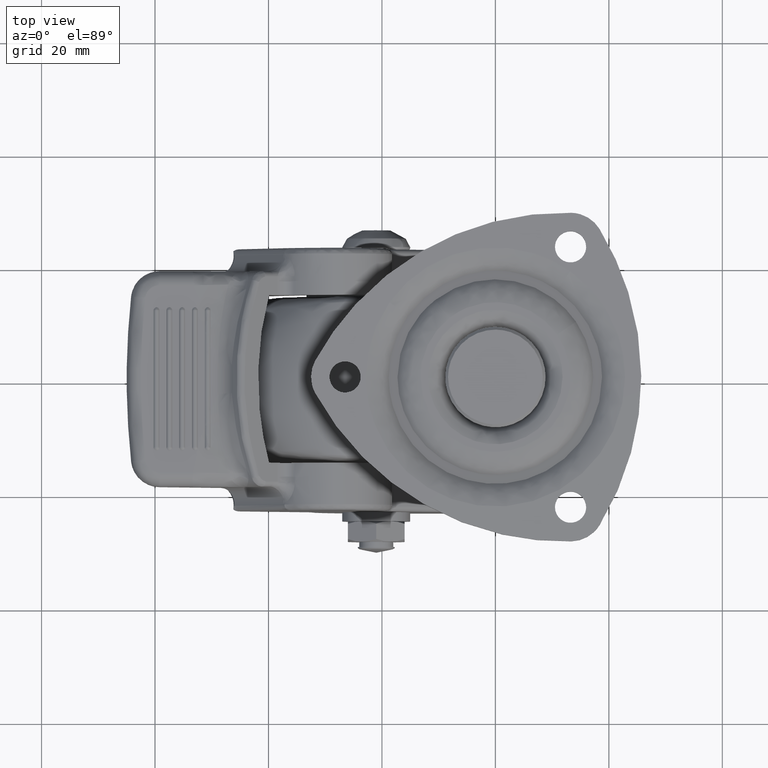
[diagram: clean part render]
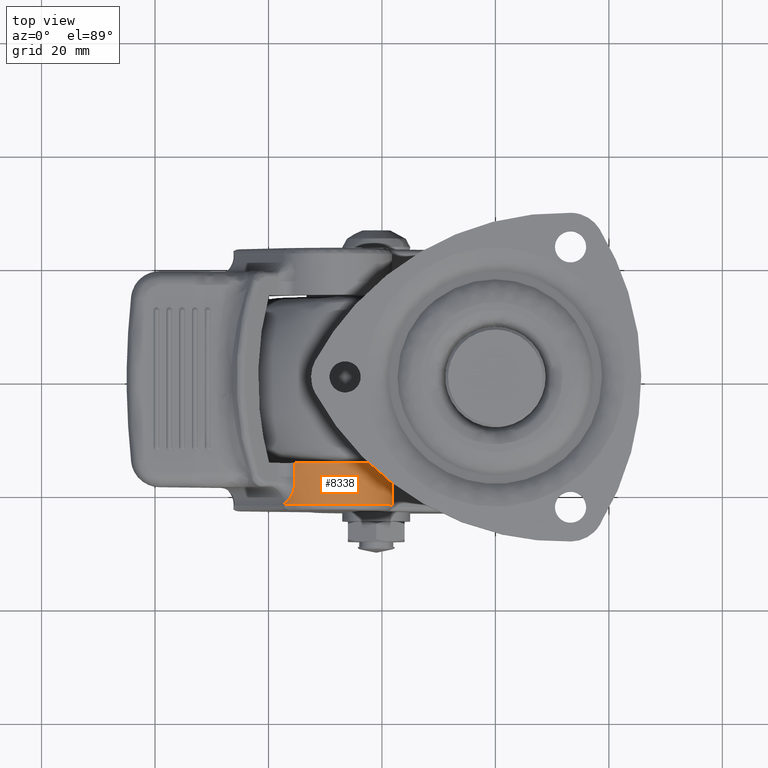
[diagram: same view with one face highlighted and labeled with its STEP entity id]
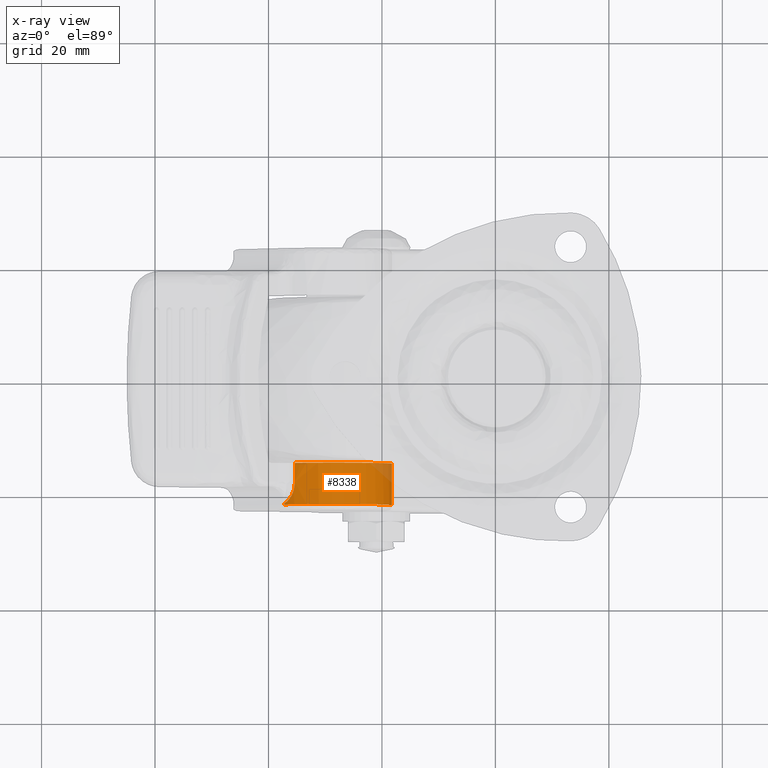
[diagram: x-ray of the same camera — body ghosted, the highlighted face saturated]
A machine part, top view. The second image highlights one B-rep face of the part: STEP entity #8338.
The next image is the same camera in x-ray: the body ghosted, the highlighted face saturated — about 6% of this face is hidden behind the body in this view.
In plain terms, the highlighted face is a freeform B-spline surface patch.
Its self-contained STEP definition (entity closure, byte-faithful):
#2324=CARTESIAN_POINT('',(-37.184680000000000,-21.918674568200299,-21.851548000000101));
#2325=VERTEX_POINT('',#2324);
#2483=CARTESIAN_POINT('',(-35.349042938869999,-18.107724286843549,-19.904971485073052));
#2484=VERTEX_POINT('',#2483);
#2534=CARTESIAN_POINT('',(-35.349042938869999,-18.107724286843549,-19.904971485073052));
#2535=CARTESIAN_POINT('',(-35.349043015436820,-18.316919158138582,-19.904971530876988));
#2536=CARTESIAN_POINT('',(-35.360442393733543,-18.524414734667900,-19.914281787566949));
#2537=CARTESIAN_POINT('',(-35.394471039901582,-18.833107884763329,-19.942433943462522));
#2538=CARTESIAN_POINT('',(-35.408646956149447,-18.935578322952850,-19.954199093350539));
#2539=CARTESIAN_POINT('',(-35.442777716536952,-19.139636276359688,-19.982740344899490));
#2540=CARTESIAN_POINT('',(-35.462713013979553,-19.240984954954019,-19.999501195634949));
#2541=CARTESIAN_POINT('',(-35.530449819561767,-19.539872546123931,-20.057004324222088));
#2542=CARTESIAN_POINT('',(-35.586327713601762,-19.733468033862412,-20.105049184983130));
#2543=CARTESIAN_POINT('',(-35.686247157095757,-20.014872580178949,-20.193573474545509));
#2544=CARTESIAN_POINT('',(-35.722288640705422,-20.107264425378592,-20.225879207627528));
#2545=CARTESIAN_POINT('',(-35.799721206812592,-20.288455768188751,-20.296417130566610));
#2546=CARTESIAN_POINT('',(-35.840707092107699,-20.376321528537058,-20.334281257768200));
#2547=CARTESIAN_POINT('',(-35.970164150004337,-20.631692241268230,-20.456044256648880));
#2548=CARTESIAN_POINT('',(-36.065129896644997,-20.790999001645051,-20.548067450383449));
#2549=CARTESIAN_POINT('',(-36.219635869253722,-21.012724412542291,-20.704824889824710));
#2550=CARTESIAN_POINT('',(-36.273378626137777,-21.083990093192710,-20.760462747078609));
#2551=CARTESIAN_POINT('',(-36.382522680885216,-21.218064661224030,-20.876165532106612));
#2552=CARTESIAN_POINT('',(-36.438113472267688,-21.281184258819380,-20.936414411536639));
#2553=CARTESIAN_POINT('',(-36.607200746523127,-21.459638938801131,-21.124282895800661));
#2554=CARTESIAN_POINT('',(-36.723105068200681,-21.563796825903911,-21.259172558181749));
#2555=CARTESIAN_POINT('',(-36.897728053417246,-21.704166117441709,-21.474114339671161));
#2556=CARTESIAN_POINT('',(-36.956056714460360,-21.748343461961650,-21.547851493857831));
#2557=CARTESIAN_POINT('',(-37.042872100533707,-21.812516887146511,-21.660761770873680));
#2558=CARTESIAN_POINT('',(-37.071655465272862,-21.833528772488599,-21.698726312223119));
#2559=CARTESIAN_POINT('',(-37.128700509048059,-21.875556801112630,-21.775043093293561));
#2560=CARTESIAN_POINT('',(-37.157007976089943,-21.896394489989468,-21.813460762038979));
#2561=CARTESIAN_POINT('',(-37.184680000000000,-21.918674568200299,-21.851548000000101));
#2562=B_SPLINE_CURVE_WITH_KNOTS('',3,(#2534,#2535,#2536,#2537,#2538,#2539,#2540,#2541,#2542,#2543,#2544,#2545,#2546,#2547,#2548,#2549,#2550,#2551,#2552,#2553,#2554,#2555,#2556,#2557,#2558,#2559,#2560,#2561),.UNSPECIFIED.,.F.,.U.,(4,2,2,2,2,2,2,2,2,2,2,2,2,4),(0.0,0.124999999999999,0.187499999999999,0.249999999999999,0.374999999999998,0.437499999999998,0.499999999999997,0.624999999999998,0.687499999999998,0.749999999999998,0.874999999999996,0.937499999999997,0.968749999999999,1.0),.UNSPECIFIED.);
#2563=EDGE_CURVE('',#2484,#2325,#2562,.T.);
#2584=CARTESIAN_POINT('',(-35.349042938869999,-14.800000000000001,-19.904971485073052));
#2585=VERTEX_POINT('',#2584);
#2605=CARTESIAN_POINT('',(-35.349042938869999,-14.800000000000001,-19.904971485073052));
#2606=CARTESIAN_POINT('',(-35.349042938869999,-18.107724286843549,-19.904971485073052));
#2607=QUASI_UNIFORM_CURVE('',1,(#2605,#2606),.UNSPECIFIED.,.F.,.U.);
#2608=EDGE_CURVE('',#2585,#2484,#2607,.T.);
#4783=CARTESIAN_POINT('',(-18.805482497004899,-22.100000000000001,-31.565368810608749));
#4784=VERTEX_POINT('',#4783);
#4798=CARTESIAN_POINT('',(-37.184680000000000,-22.100000000000001,-21.851548000000101));
#4799=VERTEX_POINT('',#4798);
#4800=CARTESIAN_POINT('',(-37.184680000000000,-22.100000000000001,-21.851548000000101));
#4801=CARTESIAN_POINT('',(-31.833126384677982,-22.099999999999994,-14.485768508641881));
#4802=CARTESIAN_POINT('',(-23.783628616806919,-22.100000000000001,-18.740109738258710));
#4803=CARTESIAN_POINT('',(-15.734130848935862,-22.099999999999994,-22.994450967875554));
#4804=CARTESIAN_POINT('',(-18.805482497004881,-22.100000000000001,-31.565368810608760));
#4812=(BOUNDED_CURVE()B_SPLINE_CURVE(2,(#4800,#4801,#4802,#4803,#4804),.UNSPECIFIED.,.F.,.U.)B_SPLINE_CURVE_WITH_KNOTS((3,2,3),(0.0,0.500000000000000,1.0),.UNSPECIFIED.)CURVE()GEOMETRIC_REPRESENTATION_ITEM()RATIONAL_B_SPLINE_CURVE((1.0,0.755525062482083,1.0,0.755525062482083,1.0))REPRESENTATION_ITEM(''));
#4813=EDGE_CURVE('',#4799,#4784,#4812,.T.);
#7845=CARTESIAN_POINT('',(-18.805483128889801,-14.800000000000001,-31.565368584175499));
#7846=VERTEX_POINT('',#7845);
#7847=CARTESIAN_POINT('',(-18.805483128889801,-14.800000000000001,-31.565368584175499));
#7848=CARTESIAN_POINT('',(-16.110191771892278,-14.800000000000139,-24.043887061117513));
#7849=CARTESIAN_POINT('',(-22.640857158614601,-14.800000000000139,-19.440878326879162));
#7850=CARTESIAN_POINT('',(-29.171522545336931,-14.800000000000139,-14.837869592640798));
#7851=CARTESIAN_POINT('',(-35.349042938869999,-14.800000000000001,-19.904971485073052));
#7859=(BOUNDED_CURVE()B_SPLINE_CURVE(2,(#7847,#7848,#7849,#7850,#7851),.UNSPECIFIED.,.F.,.U.)B_SPLINE_CURVE_WITH_KNOTS((3,2,3),(0.0,0.500000000000000,1.0),.UNSPECIFIED.)CURVE()GEOMETRIC_REPRESENTATION_ITEM()RATIONAL_B_SPLINE_CURVE((1.0,0.795803380089566,1.0,0.795803380089566,1.0))REPRESENTATION_ITEM(''));
#7860=EDGE_CURVE('',#7846,#2585,#7859,.T.);
#8147=CARTESIAN_POINT('',(-37.184680000000000,-22.100000000000001,-21.851548000000101));
#8148=CARTESIAN_POINT('',(-37.184680000000000,-21.918674568200299,-21.851548000000101));
#8149=QUASI_UNIFORM_CURVE('',1,(#8147,#8148),.UNSPECIFIED.,.F.,.U.);
#8150=EDGE_CURVE('',#4799,#2325,#8149,.T.);
#8301=CARTESIAN_POINT('',(-18.805482497004899,-22.100000000000001,-31.565368810608749));
#8302=CARTESIAN_POINT('',(-18.805483128889801,-14.800000000000001,-31.565368584175499));
#8303=QUASI_UNIFORM_CURVE('',1,(#8301,#8302),.UNSPECIFIED.,.F.,.U.);
#8304=EDGE_CURVE('',#4784,#7846,#8303,.T.);
#8312=CARTESIAN_POINT('',(-18.964192283576971,-22.282500000000010,-31.980394556158721));
#8313=CARTESIAN_POINT('',(-18.964192283576971,-14.612937499999999,-31.980394556158721));
#8314=CARTESIAN_POINT('',(-15.369815208976462,-22.282500000000002,-23.146091918119264));
#8315=CARTESIAN_POINT('',(-15.369815208976462,-14.612937500000001,-23.146091918119264));
#8316=CARTESIAN_POINT('',(-23.818940694549550,-22.282500000000010,-18.721532258229470));
#8317=CARTESIAN_POINT('',(-23.818940694549550,-14.612937499999999,-18.721532258229470));
#8318=CARTESIAN_POINT('',(-32.268066180122645,-22.282500000000002,-14.296972598339684));
#8319=CARTESIAN_POINT('',(-32.268066180122645,-14.612937500000001,-14.296972598339684));
#8320=CARTESIAN_POINT('',(-37.482068835328263,-22.282500000000010,-22.283124736033621));
#8321=CARTESIAN_POINT('',(-37.482068835328263,-14.612937499999999,-22.283124736033621));
#8329=(BOUNDED_SURFACE()B_SPLINE_SURFACE(1,2,((#8312,#8314,#8316,#8318,#8320),(#8313,#8315,#8317,#8319,#8321)),.UNSPECIFIED.,.F.,.F.,.U.)B_SPLINE_SURFACE_WITH_KNOTS((2,2),(3,2,3),(0.0,7.669562500000005),(0.0,16.227509337026909,32.455018674053832),.UNSPECIFIED.)GEOMETRIC_REPRESENTATION_ITEM()RATIONAL_B_SPLINE_SURFACE(((1.0,0.740218127486832,1.0,0.740218127486832,1.0),(1.0,0.740218127486832,1.0,0.740218127486832,1.0)))REPRESENTATION_ITEM('')SURFACE());
#8330=ORIENTED_EDGE('',*,*,#2608,.T.);
#8331=ORIENTED_EDGE('',*,*,#2563,.T.);
#8332=ORIENTED_EDGE('',*,*,#8150,.F.);
#8333=ORIENTED_EDGE('',*,*,#4813,.T.);
#8334=ORIENTED_EDGE('',*,*,#8304,.T.);
#8335=ORIENTED_EDGE('',*,*,#7860,.T.);
#8336=EDGE_LOOP('',(#8330,#8331,#8332,#8333,#8334,#8335));
#8337=FACE_OUTER_BOUND('',#8336,.T.);
#8338=ADVANCED_FACE('',(#8337),#8329,.T.);